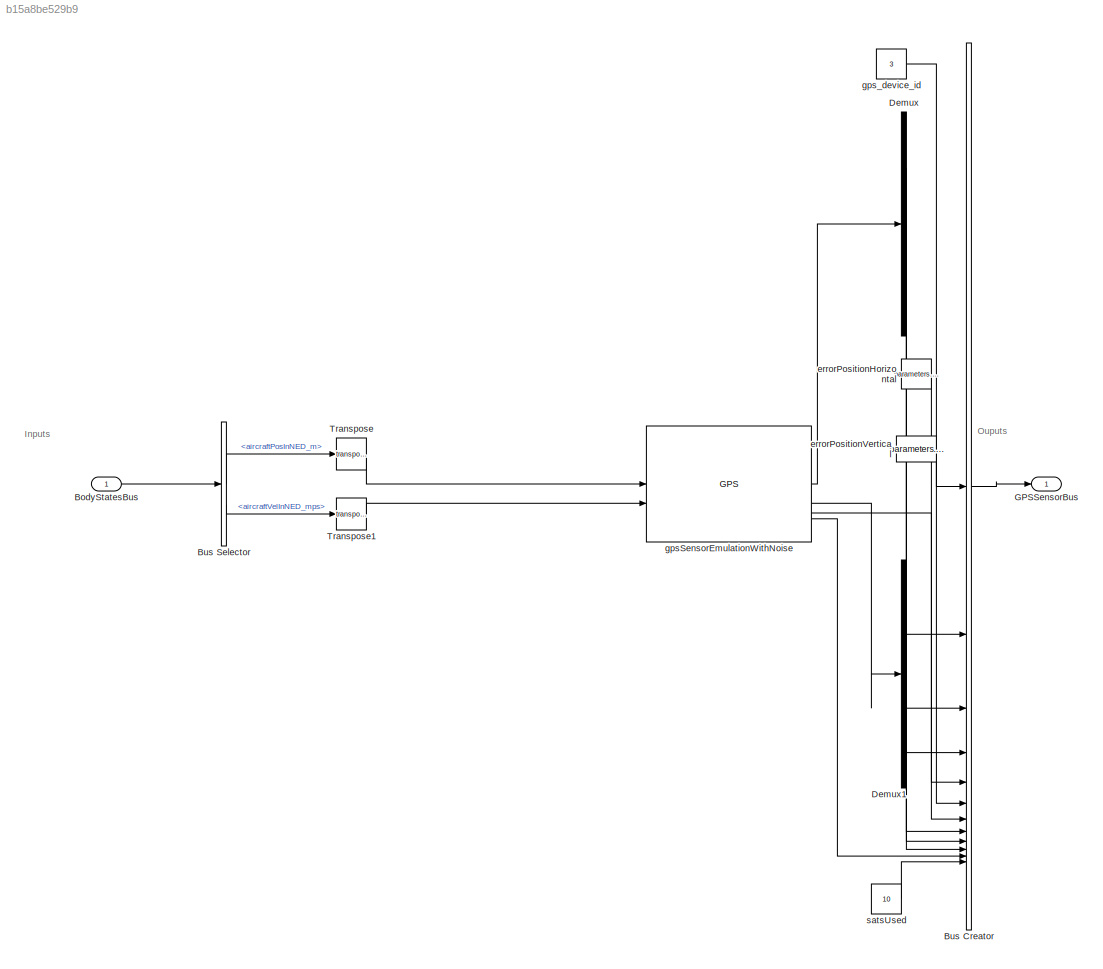
MODEL slx_b15a8be529b9
KIND model
BLOCK [Inport] BodyStatesBus
  OutDataTypeStr = Bus: BodyStateBus
BLOCK [BusCreator] Bus Creator
  DisplayOption = bar
  InheritFromInputs = off
  Inputs = 12
  OutDataTypeStr = Bus: GPSSensorBus
BLOCK [BusSelector] Bus Selector
  OutputSignals = aircraftPosInNED_m,aircraftVelInNED_mps
BLOCK [Demux] Demux
  Outputs = 3
BLOCK [Demux] Demux1
  Outputs = 3
BLOCK [Outport] GPSSensorBus
  OutDataTypeStr = Bus: GPSSensorBus
BLOCK [Math] Transpose
  Operator = transpose
BLOCK [Math] Transpose1
  Operator = transpose
BLOCK [Constant] errorPositionHorizontal
  OutDataTypeStr = Inherit: Inherit via back propagation
  Value = parameters.gps.horzPositionAccuracy_m
BLOCK [Constant] errorPositionVertical
  OutDataTypeStr = Inherit: Inherit via back propagation
  Value = parameters.gps.vertPositionAccuracy_m
BLOCK [Reference] gpsSensorEmulationWithNoise  REF=sensorgpslib/GPS
  LibrarySourceBlock = uavsimlib/GPS
  SourceBlock = sensorgpslib/GPS
  SourceType = fusion.internal.simulink.gpsSensor
BLOCK [Constant] gps_device_id
  LockScale = on
  OutDataTypeStr = double
  Value = 3
BLOCK [Constant] satsUsed
  OutDataTypeStr = double
  Value = 10
ANNOTATION (root): Inputs
ANNOTATION (root): Ouputs
LINE BodyStatesBus:1 -> Bus Selector:1
LINE Bus Creator:1 -> GPSSensorBus:1
LINE Bus Selector:1 -> Transpose:1
LINE Bus Selector:2 -> Transpose1:1
LINE Demux1:1 -> Bus Creator:8
LINE Demux1:2 -> Bus Creator:9
LINE Demux1:3 -> Bus Creator:10
LINE Demux:1 -> Bus Creator:2
LINE Demux:2 -> Bus Creator:3
LINE Demux:3 -> Bus Creator:4
LINE Transpose1:1 -> gpsSensorEmulationWithNoise:2
LINE Transpose:1 -> gpsSensorEmulationWithNoise:1
LINE errorPositionHorizontal:1 -> Bus Creator:5
LINE errorPositionVertical:1 -> Bus Creator:6
LINE gpsSensorEmulationWithNoise:1 -> Demux:1
LINE gpsSensorEmulationWithNoise:2 -> Demux1:1
LINE gpsSensorEmulationWithNoise:3 -> Bus Creator:7
LINE gpsSensorEmulationWithNoise:4 -> Bus Creator:11
LINE gps_device_id:1 -> Bus Creator:1
LINE satsUsed:1 -> Bus Creator:12
